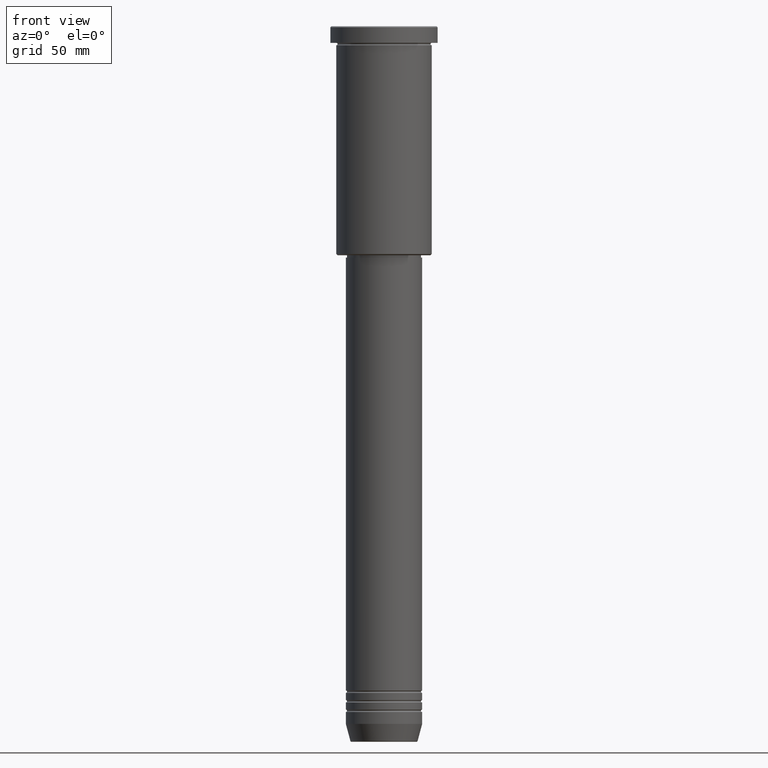
[diagram: clean part render]
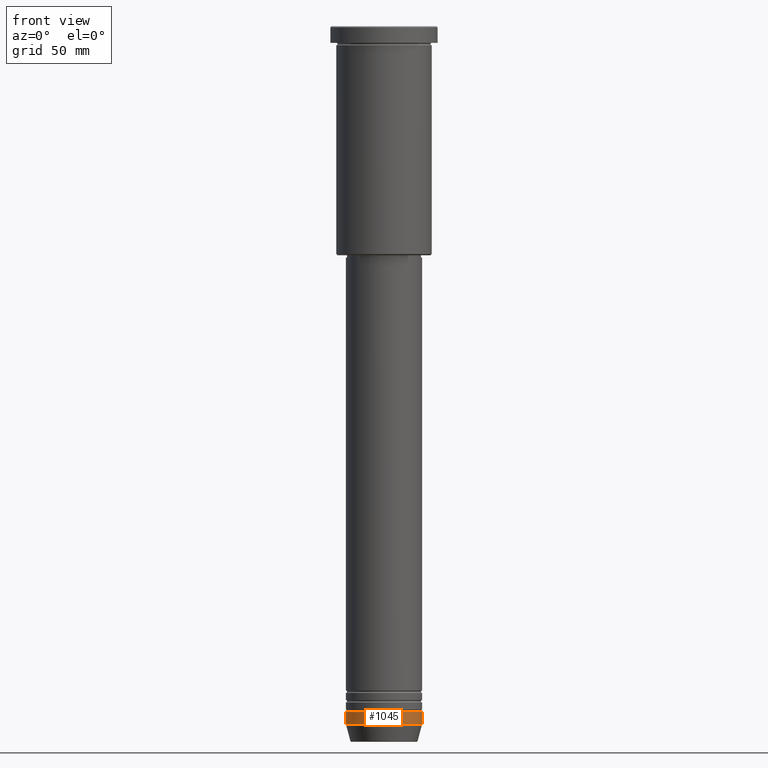
[diagram: same view with one face highlighted and labeled with its STEP entity id]
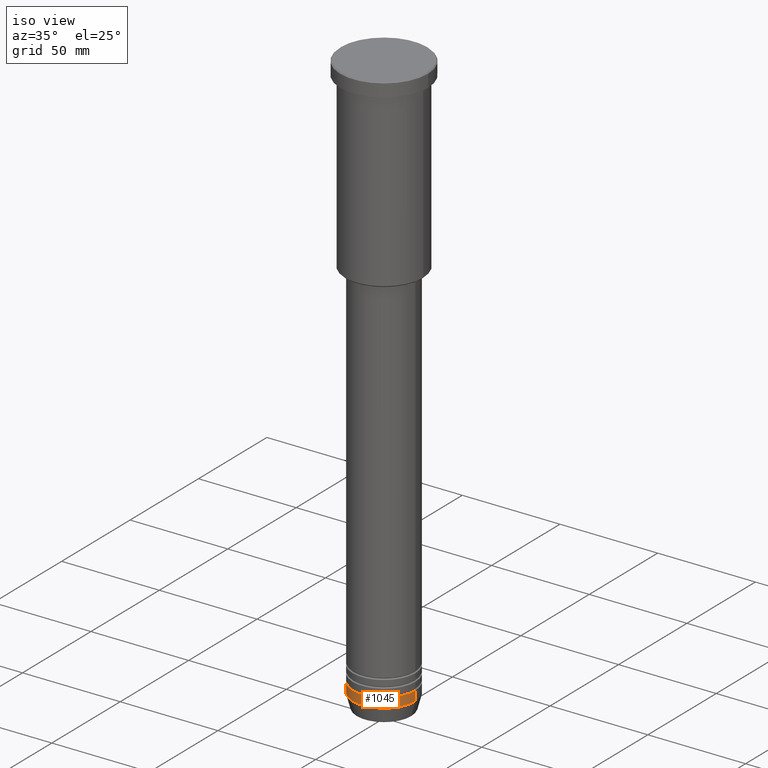
[diagram: same view with one face highlighted and labeled with its STEP entity id]
A machine part, front view. The second image highlights one B-rep face of the part: STEP entity #1045.
A second angle (iso view) of the same face is appended — the face is thin or edge-on in the first view.
In plain terms, the highlighted cylindrical surface (partial cylindrical patch) has radius 16 mm, axis along (-0, -0, 1).
Its self-contained STEP definition (entity closure, byte-faithful):
#11 = EDGE_CURVE ( 'NONE', #1108, #1030, #37, .T. ) ;
#37 = LINE ( 'NONE', #394, #998 ) ;
#50 = DIRECTION ( 'NONE',  ( 1.000000000000000000, 0.000000000000000000, 0.000000000000000000 ) ) ;
#70 = ORIENTED_EDGE ( 'NONE', *, *, #11, .T. ) ;
#90 = LINE ( 'NONE', #560, #602 ) ;
#228 = AXIS2_PLACEMENT_3D ( 'NONE', #320, #826, #1126 ) ;
#245 = DIRECTION ( 'NONE',  ( -0.000000000000000000, -0.000000000000000000, 1.000000000000000000 ) ) ;
#249 = CARTESIAN_POINT ( 'NONE',  ( 0.000000000000000000, 0.000000000000000000, 0.000000000000000000 ) ) ;
#320 = CARTESIAN_POINT ( 'NONE',  ( 0.000000000000000000, 0.000000000000000000, -292.5000000000000000 ) ) ;
#335 = ORIENTED_EDGE ( 'NONE', *, *, #1130, .F. ) ;
#394 = CARTESIAN_POINT ( 'NONE',  ( 16.00000000000000000, 0.000000000000000000, 0.000000000000000000 ) ) ;
#411 = VERTEX_POINT ( 'NONE', #887 ) ;
#528 = AXIS2_PLACEMENT_3D ( 'NONE', #249, #245, #50 ) ;
#550 = CARTESIAN_POINT ( 'NONE',  ( 16.00000000000000000, 0.000000000000000000, -292.5000000000000000 ) ) ;
#560 = CARTESIAN_POINT ( 'NONE',  ( -16.00000000000000000, 1.959434878635765131E-15, 0.000000000000000000 ) ) ;
#565 = DIRECTION ( 'NONE',  ( 1.000000000000000000, 0.000000000000000000, 0.000000000000000000 ) ) ;
#590 = DIRECTION ( 'NONE',  ( -0.000000000000000000, -0.000000000000000000, 1.000000000000000000 ) ) ;
#602 = VECTOR ( 'NONE', #923, 1000.000000000000000 ) ;
#627 = ORIENTED_EDGE ( 'NONE', *, *, #849, .T. ) ;
#632 = EDGE_CURVE ( 'NONE', #411, #1048, #90, .T. ) ;
#652 = EDGE_LOOP ( 'NONE', ( #1155, #627, #70, #335 ) ) ;
#669 = CARTESIAN_POINT ( 'NONE',  ( 0.000000000000000000, 0.000000000000000000, -287.5000000000000000 ) ) ;
#676 = DIRECTION ( 'NONE',  ( -0.000000000000000000, -0.000000000000000000, 1.000000000000000000 ) ) ;
#804 = CARTESIAN_POINT ( 'NONE',  ( 16.00000000000000000, 0.000000000000000000, -287.5000000000000000 ) ) ;
#826 = DIRECTION ( 'NONE',  ( -0.000000000000000000, -0.000000000000000000, 1.000000000000000000 ) ) ;
#849 = EDGE_CURVE ( 'NONE', #411, #1108, #1113, .T. ) ;
#885 = CYLINDRICAL_SURFACE ( 'NONE', #528, 16.00000000000000000 ) ;
#887 = CARTESIAN_POINT ( 'NONE',  ( -16.00000000000000000, 1.959434878635765131E-15, -292.5000000000000000 ) ) ;
#923 = DIRECTION ( 'NONE',  ( -0.000000000000000000, -0.000000000000000000, 1.000000000000000000 ) ) ;
#974 = FACE_OUTER_BOUND ( 'NONE', #652, .T. ) ;
#986 = AXIS2_PLACEMENT_3D ( 'NONE', #669, #676, #565 ) ;
#998 = VECTOR ( 'NONE', #590, 1000.000000000000000 ) ;
#1002 = CIRCLE ( 'NONE', #986, 16.00000000000000000 ) ;
#1030 = VERTEX_POINT ( 'NONE', #804 ) ;
#1045 = ADVANCED_FACE ( 'NONE', ( #974 ), #885, .T. ) ;
#1048 = VERTEX_POINT ( 'NONE', #1163 ) ;
#1108 = VERTEX_POINT ( 'NONE', #550 ) ;
#1113 = CIRCLE ( 'NONE', #228, 16.00000000000000000 ) ;
#1126 = DIRECTION ( 'NONE',  ( 1.000000000000000000, 0.000000000000000000, 0.000000000000000000 ) ) ;
#1130 = EDGE_CURVE ( 'NONE', #1048, #1030, #1002, .T. ) ;
#1155 = ORIENTED_EDGE ( 'NONE', *, *, #632, .F. ) ;
#1163 = CARTESIAN_POINT ( 'NONE',  ( -16.00000000000000000, 1.959434878635765131E-15, -287.5000000000000000 ) ) ;